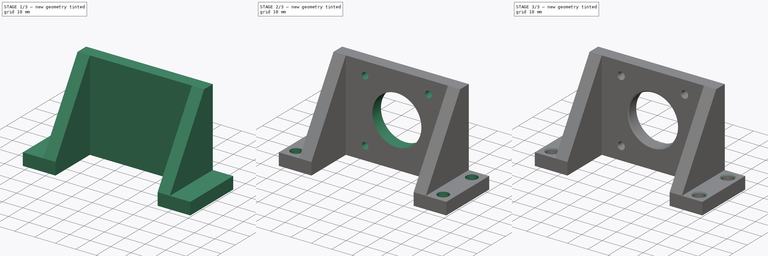
[diagram: build sequence overview — one tinted view per stage of 3, left to right]
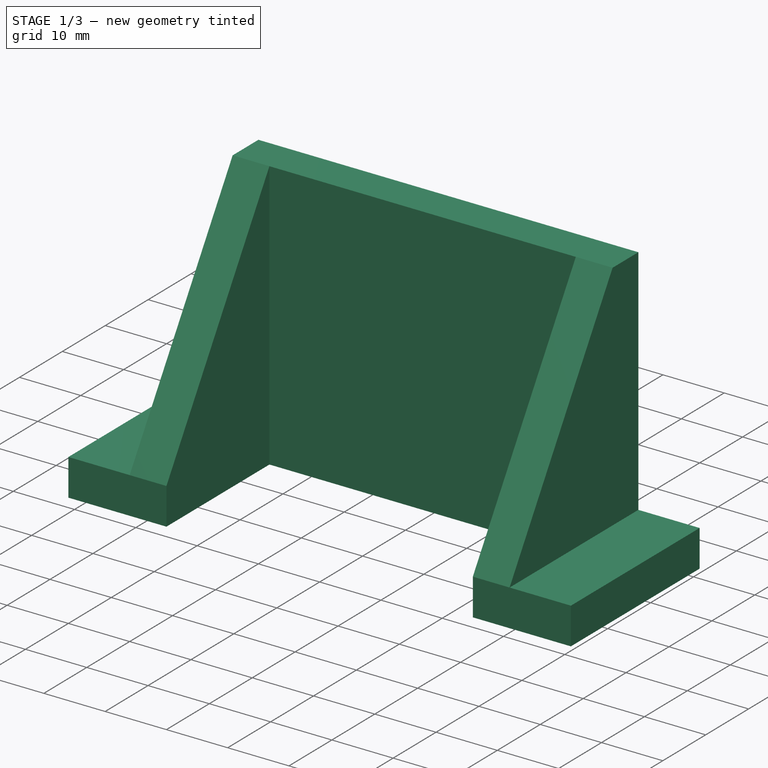
[diagram: stage 1 of 3 — iso view after this stage's code; geometry added in this stage tinted green]
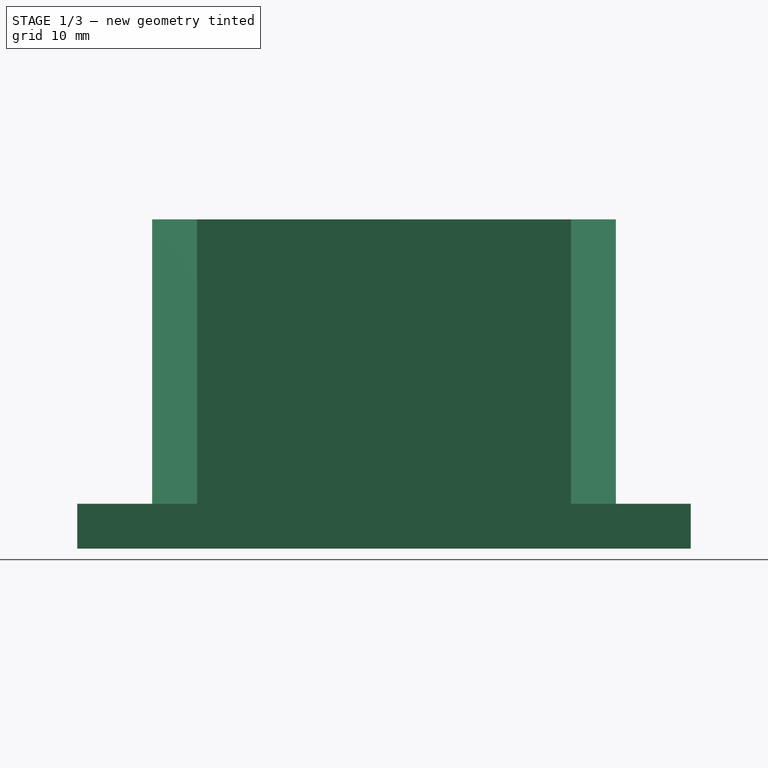
[diagram: stage 1 of 3 — front view after this stage's code; geometry added in this stage tinted green]
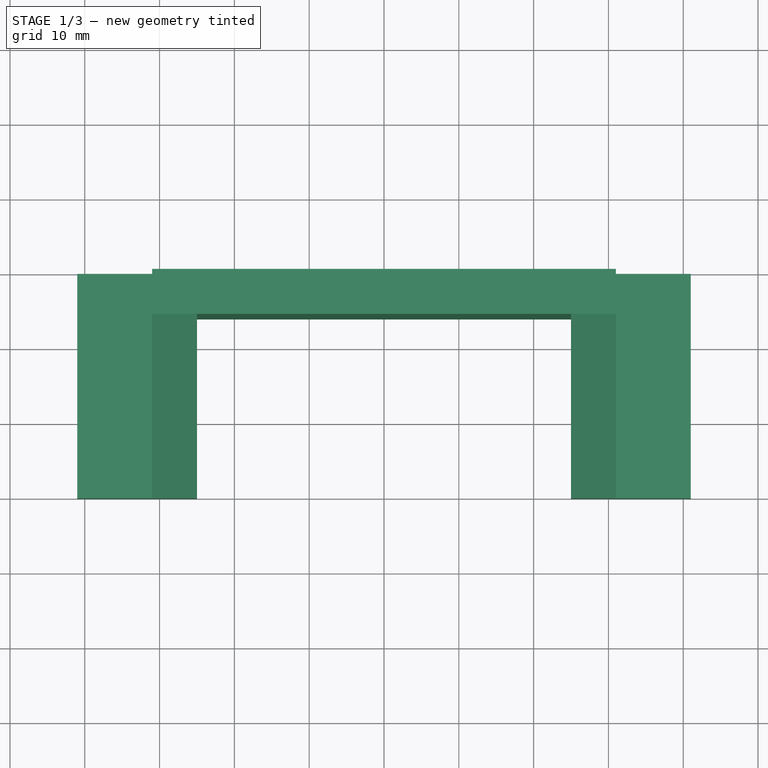
[diagram: stage 1 of 3 — top view after this stage's code; geometry added in this stage tinted green]
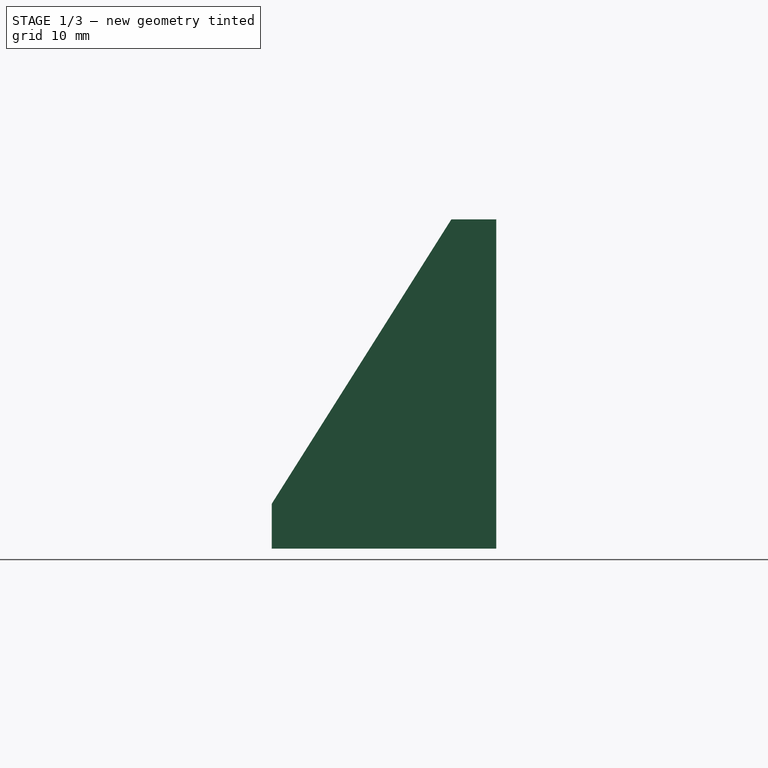
[diagram: stage 1 of 3 — right view after this stage's code; geometry added in this stage tinted green]
FCSTD DOCUMENT  (FreeCAD 0.15R4671 (Git))
Label: x-motor-mount
License: All rights reserved
LicenseURL: http://en.wikipedia.org/wiki/All_rights_reserved
objects: Drawing::FeatureView×30, Sketcher::SketchObject×5, PartDesign::Pocket×4, Drawing::FeatureViewPart×4, PartDesign::Chamfer×3, PartDesign::Pad×1, Drawing::FeaturePage×1
note: 18 computed .brp shape members not serialized (recipe doc carries the construction recipe); baked Part::Feature solids carry a one-line shape summary decoded from their .brp

FEATURE [Sketcher::SketchObject] Sketch  label="main-sketch"
  Placement = pos=(0,0,0) rot=(0.57735,0.57735,0.57735;2.0944rad)
  sketch-geometry (5):
    g0: LineSegment StartX=0 StartY=44 StartZ=0 EndX=0 EndY=0 EndZ=0
    g1: LineSegment StartX=0 StartY=0 StartZ=0 EndX=-30 EndY=0 EndZ=0
    g2: LineSegment StartX=0 StartY=44 StartZ=0 EndX=-6 EndY=44 EndZ=0
    g3: LineSegment StartX=-6 StartY=44 StartZ=0 EndX=-30 EndY=6 EndZ=0
    g4: LineSegment StartX=-30 StartY=6 StartZ=0 EndX=-30 EndY=0 EndZ=0
  constraints (15):
    c: PointOnObject(g0,g-2)
    c: Vertical(g0)
    c: Coincident(g0,g1)
    c: Horizontal(g1)
    c: Coincident(g0,g2)
    c: Horizontal(g2)
    c: Coincident(g2,g3)
    c: Coincident(g3,g4)
    c: Coincident(g1,g4)
    c: Coincident(g0,g-1)
    c: Vertical(g4)
    c: DistanceY(g3,g1) = -6
    c: DistanceX(g2,g0) = 6
    c: DistanceX(g-1,g1) = -30
    c: DistanceY(g-1,g0) = 44
FEATURE [PartDesign::Pad] Pad  label="main"
  Length = 82
  Length2 = 100
  Midplane = true
  Placement = pos=(0,0,0) rot=(0.57735,0.57735,0.57735;2.0944rad)
  Sketch = -> Sketch
  Type = 0
FEATURE [Sketcher::SketchObject] Sketch001  label="bottom-pocket-sketch"
  ExternalGeometry = -> [Pad]
  Placement = pos=(0,0,0) rot=(0.707107,0.707107,0;3.14159rad)
  Support = -> Pad [Face2]
  sketch-geometry (4):
    g0: LineSegment StartX=-31 StartY=25 StartZ=0 EndX=-6 EndY=25 EndZ=0
    g1: LineSegment StartX=-6 StartY=25 StartZ=0 EndX=-6 EndY=-25 EndZ=0
    g2: LineSegment StartX=-6 StartY=-25 StartZ=0 EndX=-31 EndY=-25 EndZ=0
    g3: LineSegment StartX=-31 StartY=-25 StartZ=0 EndX=-31 EndY=25 EndZ=0
  constraints (12):
    c: Coincident(g0,g1)
    c: Coincident(g1,g2)
    c: Coincident(g2,g3)
    c: Coincident(g3,g0)
    c: Horizontal(g0)
    c: Horizontal(g2)
    c: Vertical(g1)
    c: Vertical(g3)
    c: Symmetric(g0,g2,g-1)
    c: DistanceY(g0,g-3) = 16
    c: DistanceX(g-1,g0) = -6
    c: DistanceX(g0,g0) = -25
FEATURE [PartDesign::Pocket] Pocket  label="bottom-pocket"
  Length = 5
  Placement = pos=(0,0,0) rot=(0.57735,0.57735,0.57735;2.0944rad)
  Sketch = -> Sketch001
  Type = 1
FEATURE [Sketcher::SketchObject] Sketch002  label="front-pocket-sketch"
  ExternalGeometry = -> [Pocket]
  Placement = pos=(0,0,0) rot=(0.57735,0.57735,0.57735;4.18879rad)
  Support = -> Pocket [Face1]
  sketch-geometry (8):
    g0: LineSegment StartX=6 StartY=41 StartZ=0 EndX=51 EndY=41 EndZ=0
    g1: LineSegment StartX=51 StartY=41 StartZ=0 EndX=51 EndY=31 EndZ=0
    g2: LineSegment StartX=51 StartY=31 StartZ=0 EndX=6 EndY=31 EndZ=0
    g3: LineSegment StartX=6 StartY=31 StartZ=0 EndX=6 EndY=41 EndZ=0
    g4: LineSegment StartX=6 StartY=-31 StartZ=0 EndX=51 EndY=-31 EndZ=0
    g5: LineSegment StartX=51 StartY=-31 StartZ=0 EndX=51 EndY=-41 EndZ=0
    g6: LineSegment StartX=51 StartY=-41 StartZ=0 EndX=6 EndY=-41 EndZ=0
    g7: LineSegment StartX=6 StartY=-41 StartZ=0 EndX=6 EndY=-31 EndZ=0
  constraints (24):
    c: Coincident(g0,g1)
    c: Coincident(g1,g2)
    c: Coincident(g2,g3)
    c: Coincident(g3,g0)
    c: Horizontal(g0)
    c: Horizontal(g2)
    c: Vertical(g1)
    c: Vertical(g3)
    c: PointOnObject(g0,g-3)
    c: DistanceX(g-3,g0) = 6
    c: DistanceY(g-3,g2) = -10
    c: DistanceX(g2,g1) = 45
    c: Coincident(g4,g5)
    c: Coincident(g5,g6)
    c: Coincident(g6,g7)
    c: Coincident(g7,g4)
    c: Horizontal(g4)
    c: Horizontal(g6)
    c: Vertical(g5)
    c: Vertical(g7)
    c: PointOnObject(g6,g-4)
    c: DistanceY(g4,g-4) = -10
    c: DistanceX(g4,g4) = 45
    c: PointOnObject(g4,g3)
FEATURE [PartDesign::Pocket] Pocket001  label="front-pocket"
  Length = 5
  Placement = pos=(0,0,0) rot=(0.57735,0.57735,0.57735;2.0944rad)
  Sketch = -> Sketch002
  Type = 1
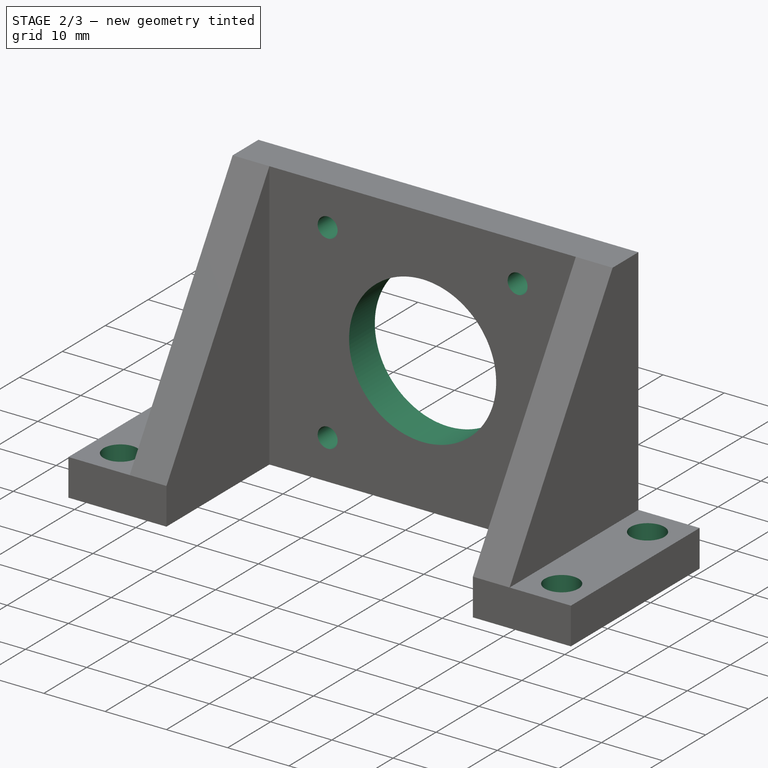
[diagram: stage 2 of 3 — iso view after this stage's code; geometry added in this stage tinted green]
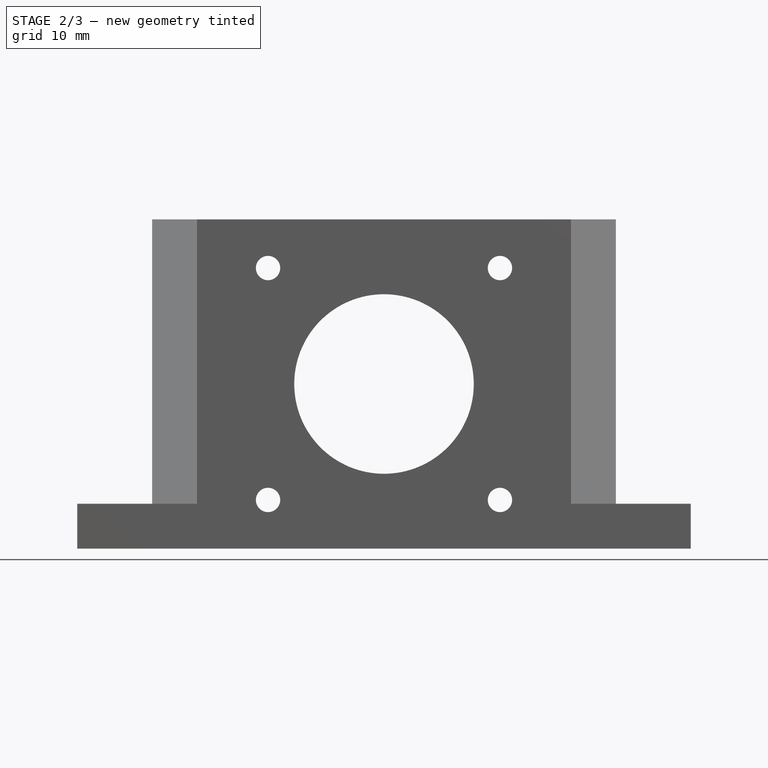
[diagram: stage 2 of 3 — front view after this stage's code; geometry added in this stage tinted green]
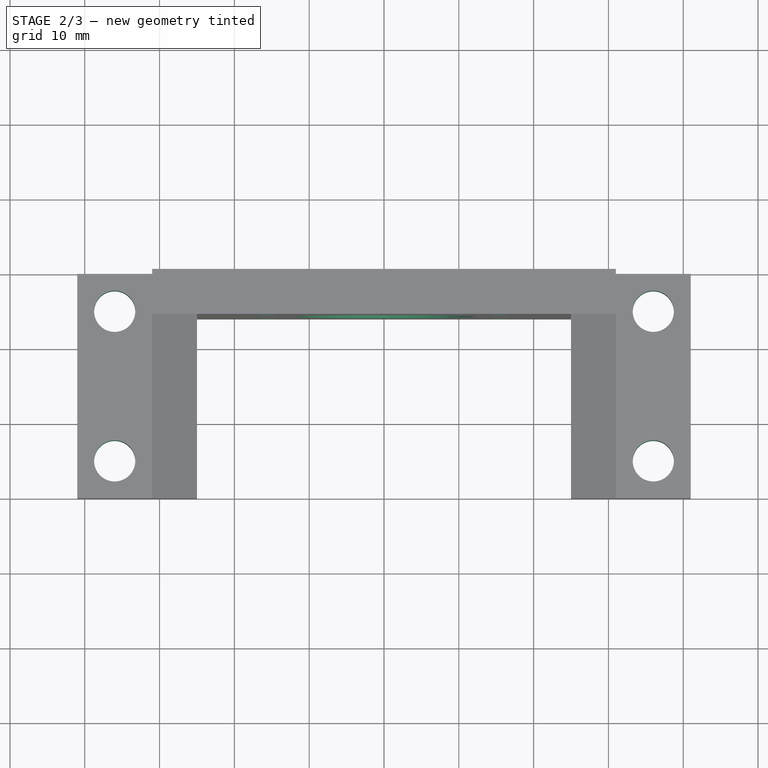
[diagram: stage 2 of 3 — top view after this stage's code; geometry added in this stage tinted green]
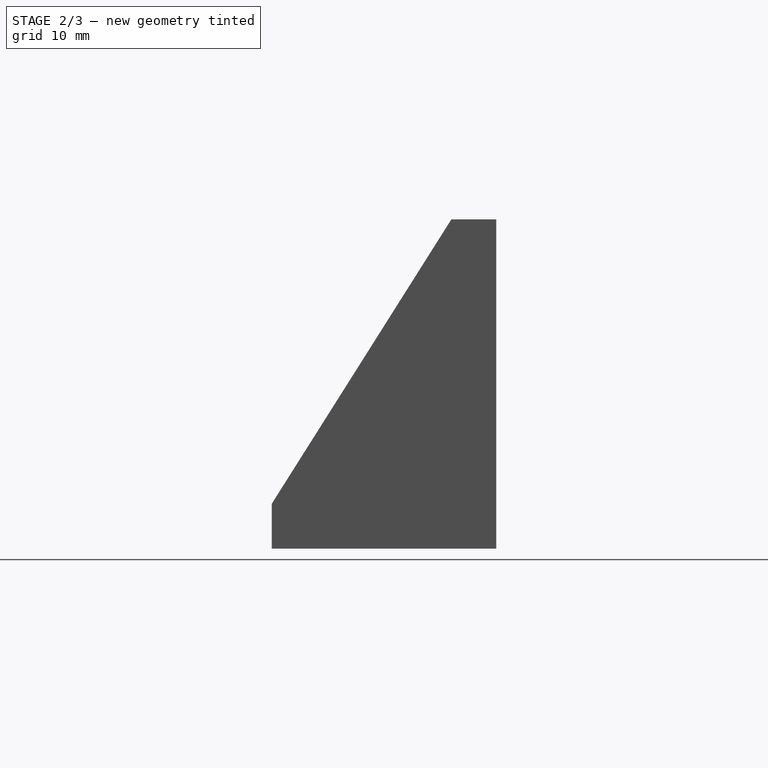
[diagram: stage 2 of 3 — right view after this stage's code; geometry added in this stage tinted green]
FEATURE [Sketcher::SketchObject] Sketch003  label="holes-sketch"
  Placement = pos=(0,0,0) rot=(0.57735,0.57735,0.57735;4.18879rad)
  Support = -> Pocket001 [Face1]
  sketch-geometry (9):
    g0: LineSegment [constr] StartX=6.5 StartY=15.5 StartZ=0 EndX=37.5 EndY=15.5 EndZ=0
    g1: LineSegment [constr] StartX=37.5 StartY=15.5 StartZ=0 EndX=37.5 EndY=-15.5 EndZ=0
    g2: LineSegment [constr] StartX=37.5 StartY=-15.5 StartZ=0 EndX=6.5 EndY=-15.5 EndZ=0
    g3: LineSegment [constr] StartX=6.5 StartY=-15.5 StartZ=0 EndX=6.5 EndY=15.5 EndZ=0
    g4: Circle CenterX=22 CenterY=0 CenterZ=0 NormalX=0 NormalY=0 NormalZ=1 Radius=12
    g5: Circle CenterX=6.5 CenterY=15.5 CenterZ=0 NormalX=0 NormalY=0 NormalZ=1 Radius=1.625
    g6: Circle CenterX=37.5 CenterY=15.5 CenterZ=0 NormalX=0 NormalY=0 NormalZ=1 Radius=1.625
    g7: Circle CenterX=6.5 CenterY=-15.5 CenterZ=0 NormalX=0 NormalY=0 NormalZ=1 Radius=1.625
    g8: Circle CenterX=37.5 CenterY=-15.5 CenterZ=0 NormalX=0 NormalY=0 NormalZ=1 Radius=1.625
  constraints (22):
    c: Coincident(g0,g1)
    c: Coincident(g1,g2)
    c: Coincident(g2,g3)
    c: Coincident(g3,g0)
    c: Horizontal(g0)
    c: Horizontal(g2)
    c: Vertical(g1)
    c: Vertical(g3)
    c: Symmetric(g0,g2,g-1)
    c: Distance(g2,g1) = 31
    c: Symmetric(g2,g0,g4)
    c: Coincident(g5,g0)
    c: Coincident(g6,g0)
    c: Coincident(g7,g2)
    c: Coincident(g8,g1)
    c: Radius(g8) = 1.625
    c: Equal(g8,g6)
    c: Equal(g8,g5)
    c: Equal(g8,g7)
    c: Radius(g4) = 12
    c: DistanceX(g-1,g4) = 22
    c: Equal(g1,g0)
FEATURE [PartDesign::Pocket] Pocket002  label="holes"
  Length = 5
  Placement = pos=(0,0,0) rot=(0.57735,0.57735,0.57735;2.0944rad)
  Sketch = -> Sketch003
  Type = 1
FEATURE [Sketcher::SketchObject] Sketch004  label="mounting-holes-sketch"
  ExternalGeometry = -> [Pocket002]
  Placement = pos=(0,0,6) rot=(0,0,-1;1.5708rad)
  Support = -> Pocket002 [Face3]
  sketch-geometry (9):
    g0: LineSegment [constr] StartX=5 StartY=36 StartZ=0 EndX=25 EndY=36 EndZ=0
    g1: LineSegment [constr] StartX=25 StartY=36 StartZ=0 EndX=25 EndY=-36 EndZ=0
    g2: LineSegment [constr] StartX=25 StartY=-36 StartZ=0 EndX=5 EndY=-36 EndZ=0
    g3: LineSegment [constr] StartX=5 StartY=-36 StartZ=0 EndX=5 EndY=36 EndZ=0
    g4: LineSegment [constr] StartX=0 StartY=36 StartZ=0 EndX=30 EndY=36 EndZ=0
    g5: Circle CenterX=5 CenterY=36 CenterZ=0 NormalX=0 NormalY=0 NormalZ=1 Radius=2.75
    g6: Circle CenterX=25 CenterY=36 CenterZ=0 NormalX=0 NormalY=0 NormalZ=1 Radius=2.75
    g7: Circle CenterX=5 CenterY=-36 CenterZ=0 NormalX=0 NormalY=0 NormalZ=1 Radius=2.75
    g8: Circle CenterX=25 CenterY=-36 CenterZ=0 NormalX=0 NormalY=0 NormalZ=1 Radius=2.75
  constraints (24):
    c: Coincident(g0,g1)
    c: Coincident(g1,g2)
    c: Coincident(g2,g3)
    c: Coincident(g3,g0)
    c: Horizontal(g0)
    c: Horizontal(g2)
    c: Vertical(g1)
    c: Vertical(g3)
    c: DistanceX(g0,g-4) = -5
    c: DistanceX(g0,g-3) = 5
    c: PointOnObject(g4,g-4)
    c: PointOnObject(g4,g-3)
    c: Horizontal(g4)
    c: Symmetric(g-4,g-4,g4)
    c: PointOnObject(g0,g4)
    c: Symmetric(g0,g2,g-1)
    c: Coincident(g5,g0)
    c: Coincident(g6,g0)
    c: Coincident(g7,g2)
    c: Coincident(g8,g1)
    c: Radius(g5) = 2.75
    c: Equal(g5,g6)
    c: Equal(g5,g8)
    c: Equal(g5,g7)
FEATURE [PartDesign::Pocket] Pocket003  label="mounting-holes"
  Length = 5
  Placement = pos=(0,0,0) rot=(0.57735,0.57735,0.57735;2.0944rad)
  Sketch = -> Sketch004
  Type = 1
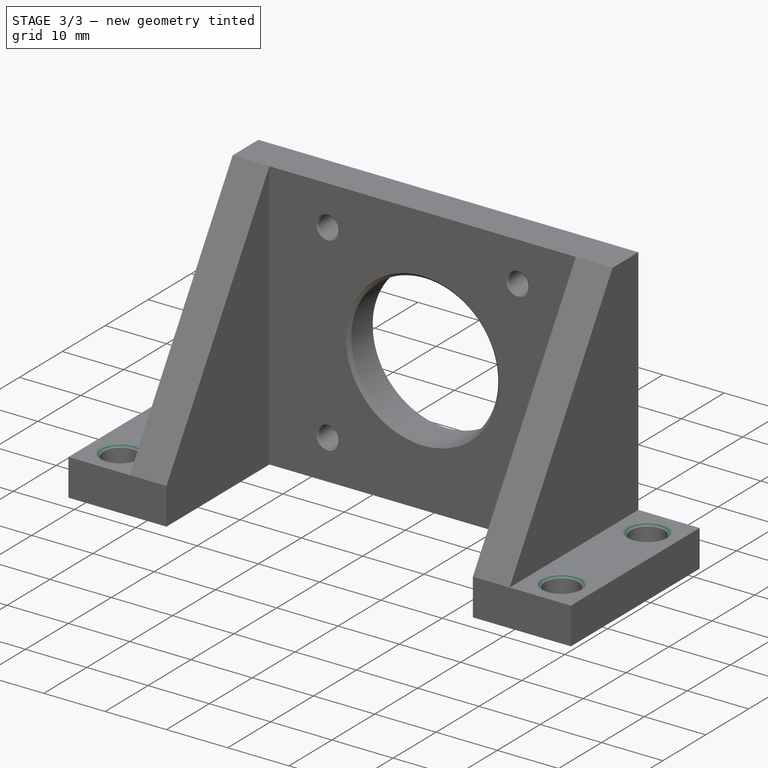
[diagram: stage 3 of 3 — iso view after this stage's code; geometry added in this stage tinted green]
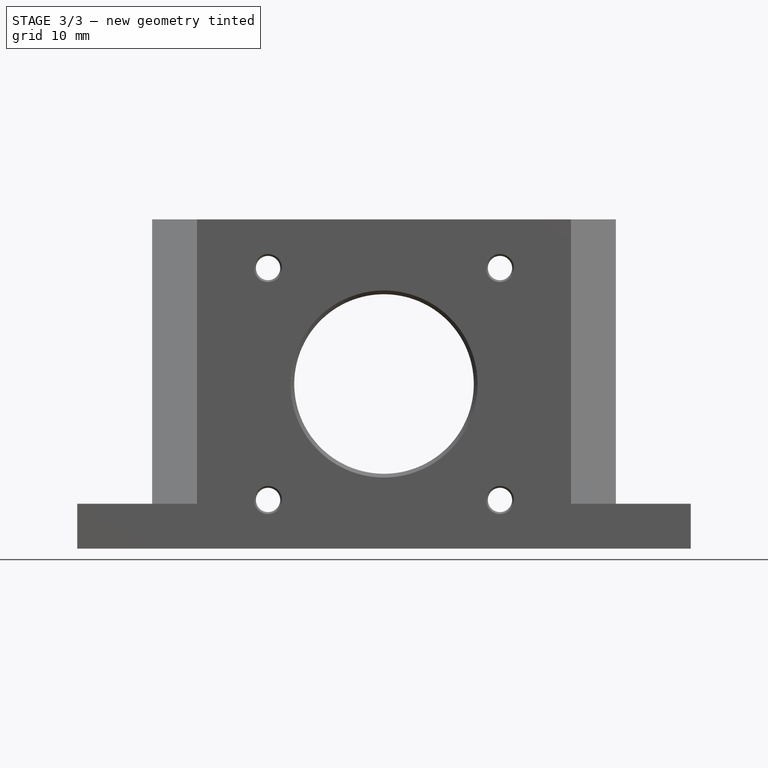
[diagram: stage 3 of 3 — front view after this stage's code; geometry added in this stage tinted green]
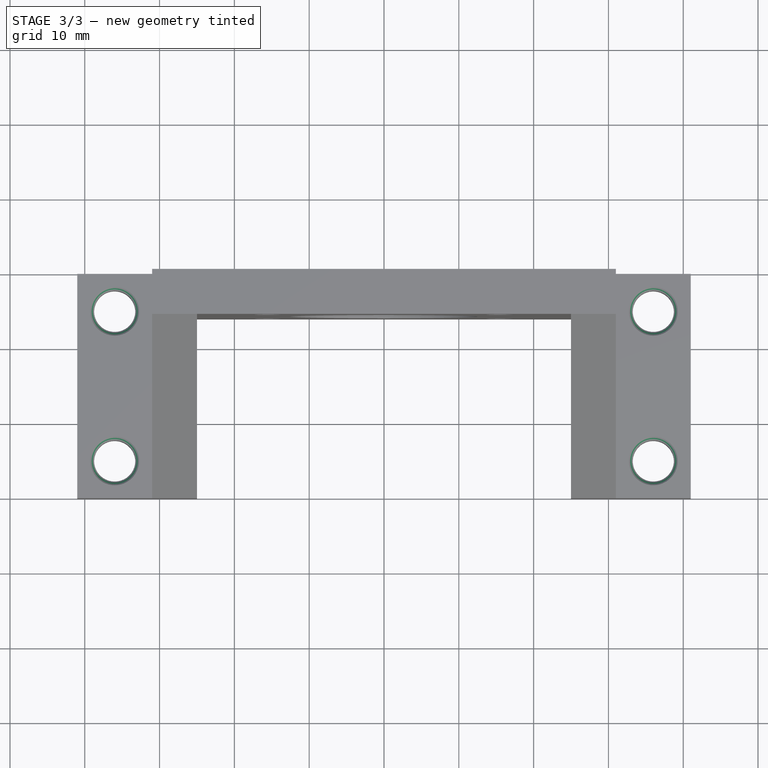
[diagram: stage 3 of 3 — top view after this stage's code; geometry added in this stage tinted green]
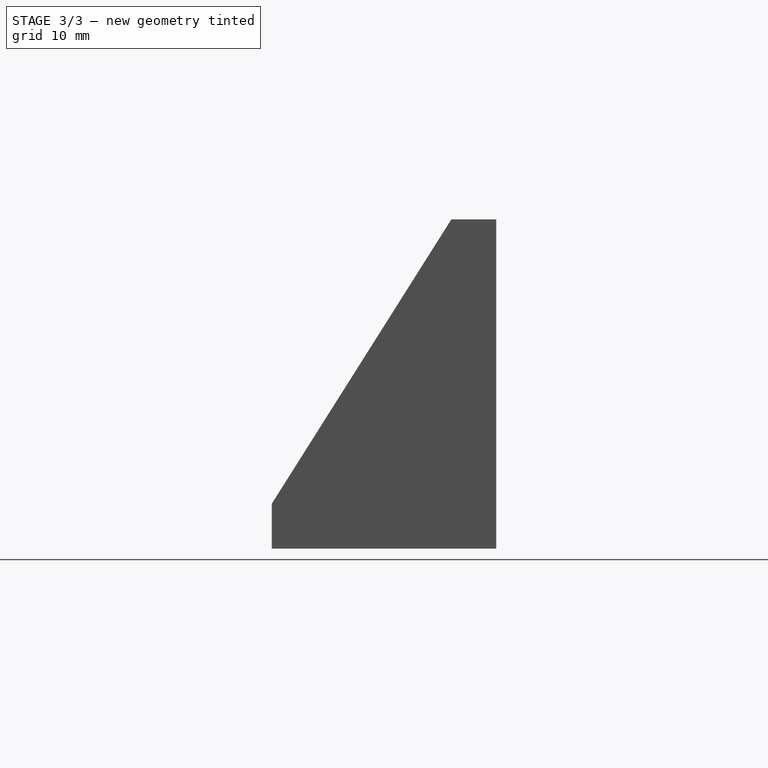
[diagram: stage 3 of 3 — right view after this stage's code; geometry added in this stage tinted green]
FEATURE [PartDesign::Chamfer] Chamfer  label="mounting-holes-chamfer"
  Base = -> Pocket003 [Edge41,Edge42,Edge20,Edge19]
  Placement = pos=(0,0,0) rot=(0.57735,0.57735,0.57735;2.0944rad)
  Size = 0.5
FEATURE [PartDesign::Chamfer] Chamfer001  label="motor-hole-chamfer"
  Base = -> Chamfer [Edge58,Edge19]
  Placement = pos=(0,0,0) rot=(0.57735,0.57735,0.57735;2.0944rad)
  Size = 0.5
FEATURE [PartDesign::Chamfer] Chamfer002  label="x-motor-mount"
  Base = -> Chamfer001 [Edge13,Edge12,Edge10,Edge11,Edge53,Edge51,Edge49,Edge47]
  Placement = pos=(0,0,0) rot=(0.57735,0.57735,0.57735;2.0944rad)
  Size = 0.25
FEATURE [Drawing::FeatureViewPart] Ortho  label="Ortho_0_0"
  Direction = (0,1,0)
  HiddenWidth = 0.15
  LineWidth = 0.35
  Rotation = -90
  Scale = 1.75
  ShowHiddenLines = false
  ShowSmoothLines = false
  Source = -> Chamfer002
  Tolerance = 0.05
  ViewResult = <g id="Ortho_0_0"\n   transform="rotate(-90,106.333,183.833) translate(106.333,183.833) scale(1.75,1.75)"\n  >\n<g   stroke="rgb(0, 0, 0)"\n   stroke-width="0.2"\n   stroke-linecap="butt"\n   stroke-linejoin="miter"\n   fill="none"\n   transform="scale(1,-1)"\n  >\n<circle cx ="37.5" cy ="15.5" r ="1.875" /><circle cx ="22" cy ="-1.42109e-14" r ="12.5" /><path id= "3" d=" M 6 -31 L 44 -31 " />\n<path id= "4" d=" M 6 -41 L 6 -31 " />\n<path id= "5" d=" M 44 -31 L 44 31 " />\n<path id= "6" d=" M 6 -41 L -4.26326e-14 -41 " />\n<path id= "7" d=" M 44 31 L 6 31 " />\n<path id= "8" d=" M -2.27596e-14 -41 L 2.27596e-14 41 " />\n<path id= "9" d=" M 6 31 L 6 41 " />\n<path id= "10" d=" M 6 41 L 0 41 " />\n<circle cx ="6.5" cy ="15.5" r ="1.875" /><circle cx ="37.5" cy ="-15.5" r ="1.875" /><circle cx ="6.5" cy ="-15.5" r ="1.875" /><circle cx ="37.5" cy ="15.5" r ="1.625" /><circle cx ="22" cy ="-1.42109e-14" r ="12" /><path d="M6,-32.75 L6,-32.8315  L6,-33.0719  L6,-33.459  L6,-33.9737  L6,-34.5899  L6,-35.2768  L6,-36  L6,-36.7232  L6,-37.4101  L6,-38.0263  L6,-38.541  L6,-38.9281  L6,-39.1685  L6,-39.25 " /><path d="M6,39.25 L6,39.1685  L6,38.9281  L6,38.541  L6,38.0263  L6,37.4101  L6,36.7232  L6,36  L6,35.2768  L6,34.5899  L6,33.9737  L6,33.459  L6,33.0719  L6,32.8315  L6,32.75 " /><circle cx ="6.5" cy ="15.5" r ="1.625" /><circle cx ="37.5" cy ="-15.5" r ="1.625" /><circle cx ="6.5" cy ="-15.5" r ="1.625" /></g>\n</g>
  Visible = true
  X = 106.333
  Y = 183.833
FEATURE [Drawing::FeatureViewPart] Ortho001  label="Ortho_1_0"
  Direction = (-1,0,0)
  HiddenWidth = 0.15
  LineWidth = 0.35
  Rotation = 90
  Scale = 1.75
  ShowHiddenLines = false
  ShowSmoothLines = false
  Source = -> Chamfer002
  Tolerance = 0.05
  ViewResult = <g id="Ortho_1_0"\n   transform="rotate(90,216.417,183.833) translate(216.417,183.833) scale(1.75,1.75)"\n  >\n<g   stroke="rgb(0, 0, 0)"\n   stroke-width="0.2"\n   stroke-linecap="butt"\n   stroke-linejoin="miter"\n   fill="none"\n   transform="scale(1,-1)"\n  >\n<path d="M-9.5,-5.27356e-15 L-9.8134,-5.44753e-15  L-10.7379,-5.96073e-15  L-12.2271,-6.78741e-15  L-14.2064,-7.88612e-15  L-16.5765,-9.20178e-15  L-19.2185,-1.06684e-14  L-22,-1.22125e-14  L-24.7815,-1.37565e-14  L-27.4235,-1.52231e-14  L-29.7936,-1.65388e-14  L-31.7729,-1.76375e-14  L-33.2621,-1.84642e-14  L-34.1866,-1.89774e-14  L-34.5,-1.91513e-14 " /><path id= "2" d=" M -6 -9.21485e-15 L -44 -2.18714e-14 " />\n<path id= "3" d=" M -6 -3.33067e-15 L 4.26326e-14 1.89327e-29 " />\n<path d="M-35.625,-1.97758e-14 L-35.672,-1.98019e-14  L-35.8107,-1.98789e-14  L-36.0341,-2.00029e-14  L-36.331,-2.01677e-14  L-36.6865,-2.03651e-14  L-37.0828,-2.05851e-14  L-37.5,-2.08167e-14  L-37.9172,-2.10483e-14  L-38.3135,-2.12683e-14  L-38.669,-2.14656e-14  L-38.9659,-2.16304e-14  L-39.1893,-2.17544e-14  L-39.328,-2.18314e-14  L-39.375,-2.18575e-14 " /><path id= "5" d=" M -44 6 L -44 -2.31482e-14 " />\n<path id= "6" d=" M -6 30 L -44 6 " />\n<path id= "7" d=" M -6 -9.21485e-15 L -6 21.75 " />\n<path id= "8" d=" M -6 -1.14353e-14 L -6 30 " />\n<path d="M-6,1.75 L-6,1.83148  L-6,2.07185  L-6,2.45905  L-6,2.97366  L-6,3.58988  L-6,4.27681  L-6,5  L-6,5.72319  L-6,6.41012  L-6,7.02634  L-6,7.54095  L-6,7.92815  L-6,8.16852  L-6,8.25 " /><path id= "10" d=" M 2.27596e-14 5.05364e-30 L 2.27596e-14 30 " />\n<path id= "11" d=" M -6 30 L 2.66454e-14 30 " />\n<path id= "12" d=" M -1.28786e-14 30 L -6 30 " />\n</g>\n</g>
  Visible = true
  X = 216.417
  Y = 183.833
FEATURE [Drawing::FeatureViewPart] Ortho002  label="Ortho_0_1"
  Direction = (0,0,1)
  HiddenWidth = 0.15
  LineWidth = 0.35
  Rotation = 180
  Scale = 1.75
  ShowHiddenLines = false
  ShowSmoothLines = false
  Source = -> Chamfer002
  Tolerance = 0.05
  ViewResult = <blob: 3945 chars omitted>
  Visible = true
  X = 106.333
  Y = 76.9167
FEATURE [Drawing::FeatureViewPart] Ortho003  label="Ortho_1_1"
  Direction = (-0.57735,0.57735,0.57735)
  HiddenWidth = 0.15
  LineWidth = 0.35
  Rotation = -120
  Scale = 0.6
  ShowHiddenLines = false
  ShowSmoothLines = false
  Source = -> Chamfer002
  Tolerance = 0.05
  ViewResult = <blob: 5488 chars omitted>
  Visible = true
  X = 236.303
  Y = 65.1187
FEATURE [Drawing::FeatureView] centerLines001
  Rotation = 0
  ViewResult = <g transform="scale(1.750000,1.750000)" stroke="rgb(0,0,255)"  stroke-width="0.182857" > <path d="M 24.761714,18.952400 L 24.761714,17.238114 M 24.761714,16.095257 L 24.761714,13.206735 "/>\n<path d="M 24.761714,18.952400 L 23.047429,18.952400 M 21.904571,18.952400 L 18.532031,18.952400 "/>\n<path d="M 24.761714,18.952400 L 24.761714,20.666686 M 24.761714,21.809543 L 24.761714,25.238114 M 24.761714,26.380971 L 24.761714,28.095257 M 24.761714,29.238114 L 24.761714,32.666686 M 24.761714,33.809543 L 24.761714,35.523829 M 24.761714,36.666686 L 24.761714,40.095257 M 24.761714,41.238114 L 24.761714,42.952400 M 24.761714,44.095257 L 24.761714,44.306466 "/>\n<path d="M 24.761714,18.952400 L 26.476000,18.952400 M 27.618857,18.952400 L 29.182624,18.952400 "/> </g> 
  Visible = true
  X = 0
  Y = 0
FEATURE [Drawing::FeatureView] centerLines002
  Rotation = 0
  ViewResult = <g transform="scale(1.750000,1.750000)" stroke="rgb(0,0,255)"  stroke-width="0.182857" > <path d="M 24.761714,38.952400 L 24.761714,40.666686 "/>\n<path d="M 24.761714,38.952400 L 26.476000,38.952400 M 27.618857,38.952400 L 29.395636,38.952400 "/>\n<path d="M 24.761714,38.952400 L 24.761714,39.620205 "/>\n<path d="M 24.761714,38.952400 L 23.047429,38.952400 M 21.904571,38.952400 L 20.662150,38.952400 "/> </g> 
  Visible = true
  X = 0
  Y = 0
FEATURE [Drawing::FeatureView] dim001
  Rotation = 0
  ViewResult = <g> \n  <line x1="41.333000" y1="33.166700" x2="27.216675" y2="33.166700" style="stroke:rgb(0,0,255);stroke-width:0.50" />\n<line x1="41.333000" y1="68.166700" x2="27.216675" y2="68.166700" style="stroke:rgb(0,0,255);stroke-width:0.50" />\n<line x1="28.216675" y1="33.166700" x2="28.216675" y2="68.166700" style="stroke:rgb(0,0,255);stroke-width:0.50" /> \n  <polygon points="28.216675,68.166700 29.216675,65.166700 28.216675,64.166700 27.216675,65.166700" style="fill:rgb(0,0,255);stroke:rgb(0,0,255);stroke-width:0" /><polygon points="28.216675,33.166700 27.216675,36.166700 28.216675,37.166700 29.216675,36.166700" style="fill:rgb(0,0,255);stroke:rgb(0,0,255);stroke-width:0" /> \n  <text x="26.216675" y="50.666700" font-family="inherit" font-size="3.6" fill="rgb(0,0,255)" text-anchor="middle" transform="rotate(-90.000000 26.216675,50.666700)" >20</text> </g>
  Visible = true
  X = 0
  Y = 0
FEATURE [Drawing::FeatureView] dim002
  Rotation = 0
  ViewResult = <g> \n  <line x1="41.333000" y1="68.166700" x2="27.245971" y2="68.166700" style="stroke:rgb(0,0,255);stroke-width:0.50" />\n<line x1="32.583000" y1="76.916700" x2="27.245971" y2="76.916700" style="stroke:rgb(0,0,255);stroke-width:0.50" />\n<line x1="28.245971" y1="68.166700" x2="28.245971" y2="76.916700" style="stroke:rgb(0,0,255);stroke-width:0.50" /> \n  <polygon points="28.245971,76.916700 27.245971,79.916700 28.245971,80.916700 29.245971,79.916700" style="fill:rgb(0,0,255);stroke:rgb(0,0,255);stroke-width:0" /><polygon points="28.245971,68.166700 29.245971,65.166700 28.245971,64.166700 27.245971,65.166700" style="fill:rgb(0,0,255);stroke:rgb(0,0,255);stroke-width:0" /> \n  <text x="26.245971" y="72.541700" font-family="inherit" font-size="3.6" fill="rgb(0,0,255)" text-anchor="middle" transform="rotate(-90.000000 26.245971,72.541700)" >5</text> </g>
  Visible = true
  X = 0
  Y = 0
FEATURE [Drawing::FeatureView] dim003
  Rotation = 0
  ViewResult = <g> \n  <line x1="32.583000" y1="24.416700" x2="17.117376" y2="24.416700" style="stroke:rgb(0,0,255);stroke-width:0.50" />\n<line x1="32.583000" y1="76.916700" x2="17.117376" y2="76.916700" style="stroke:rgb(0,0,255);stroke-width:0.50" />\n<line x1="18.117376" y1="24.416700" x2="18.117376" y2="76.916700" style="stroke:rgb(0,0,255);stroke-width:0.50" /> \n  <polygon points="18.117376,76.916700 19.117376,73.916700 18.117376,72.916700 17.117376,73.916700" style="fill:rgb(0,0,255);stroke:rgb(0,0,255);stroke-width:0" /><polygon points="18.117376,24.416700 17.117376,27.416700 18.117376,28.416700 19.117376,27.416700" style="fill:rgb(0,0,255);stroke:rgb(0,0,255);stroke-width:0" /> \n  <text x="16.117376" y="50.666700" font-family="inherit" font-size="3.6" fill="rgb(0,0,255)" text-anchor="middle" transform="rotate(-90.000000 16.117376,50.666700)" >30</text> </g>
  Visible = true
  X = 0
  Y = 0
FEATURE [Drawing::FeatureView] centerLines003
  Rotation = 0
  ViewResult = <g transform="scale(1.750000,1.750000)" stroke="rgb(0,0,255)"  stroke-width="0.182857" > <path d="M 96.761714,18.952400 L 96.761714,17.238114 M 96.761714,16.095257 L 96.761714,15.203392 "/>\n<path d="M 96.761714,18.952400 L 95.047429,18.952400 M 93.904571,18.952400 L 92.350336,18.952400 "/>\n<path d="M 96.761714,18.952400 L 96.761714,20.666686 M 96.761714,21.809543 L 96.761714,25.238114 M 96.761714,26.380971 L 96.761714,28.095257 M 96.761714,29.238114 L 96.761714,32.666686 M 96.761714,33.809543 L 96.761714,35.523829 M 96.761714,36.666686 L 96.761714,40.095257 M 96.761714,41.238114 L 96.761714,42.939311 "/>\n<path d="M 96.761714,18.952400 L 98.476000,18.952400 M 99.618857,18.952400 L 100.876563,18.952400 "/> </g> 
  Visible = true
  X = 0
  Y = 0
FEATURE [Drawing::FeatureView] centerLines004
  Rotation = 0
  ViewResult = <g transform="scale(1.750000,1.750000)" stroke="rgb(0,0,255)"  stroke-width="0.182857" > <path d="M 96.761714,38.952400 L 96.761714,38.933012 "/>\n<path d="M 96.761714,38.952400 L 95.047429,38.952400 M 93.904571,38.952400 L 92.144885,38.952400 "/>\n<path d="M 96.761714,38.952400 L 96.761714,38.727560 "/>\n<path d="M 96.761714,38.952400 L 98.476000,38.952400 M 99.618857,38.952400 L 102.109271,38.952400 "/> </g> 
  Visible = true
  X = 0
  Y = 0
FEATURE [Drawing::FeatureView] dim004
  Rotation = 0
  ViewResult = <g> \n  <line x1="169.332999" y1="77.143794" x2="169.332999" y2="86.210905" style="stroke:rgb(0,0,255);stroke-width:0.50" />\n<line x1="43.332999" y1="79.536316" x2="43.332999" y2="86.210905" style="stroke:rgb(0,0,255);stroke-width:0.50" />\n<line x1="169.332999" y1="85.210905" x2="43.332999" y2="85.210905" style="stroke:rgb(0,0,255);stroke-width:0.50" /> \n  <polygon points="43.332999,85.210905 46.332999,86.210905 47.332999,85.210905 46.332999,84.210905" style="fill:rgb(0,0,255);stroke:rgb(0,0,255);stroke-width:0" /><polygon points="169.332999,85.210905 166.332999,84.210905 165.332999,85.210905 166.332999,86.210905" style="fill:rgb(0,0,255);stroke:rgb(0,0,255);stroke-width:0" /> \n  <text x="106.332999" y="83.210905" font-family="inherit" font-size="3.6" fill="rgb(0,0,255)" text-anchor="middle" transform="rotate(0.000000 106.332999,83.210905)" >72</text> </g>
  Visible = true
  X = 0
  Y = 0
FEATURE [Drawing::FeatureView] dim005
  Rotation = 0
  ViewResult = <g> \n  <line x1="34.583000" y1="78.916700" x2="34.583000" y2="86.249652" style="stroke:rgb(0,0,255);stroke-width:0.50" />\n<line x1="43.332999" y1="79.536316" x2="43.332999" y2="86.249652" style="stroke:rgb(0,0,255);stroke-width:0.50" />\n<line x1="34.583000" y1="85.249652" x2="43.332999" y2="85.249652" style="stroke:rgb(0,0,255);stroke-width:0.50" /> \n  <polygon points="43.332999,85.249652 46.332999,86.249652 47.332999,85.249652 46.332999,84.249652" style="fill:rgb(0,0,255);stroke:rgb(0,0,255);stroke-width:0" /><polygon points="34.583000,85.249652 31.583000,84.249652 30.583000,85.249652 31.583000,86.249652" style="fill:rgb(0,0,255);stroke:rgb(0,0,255);stroke-width:0" /> \n  <text x="38.958000" y="83.249652" font-family="inherit" font-size="3.6" fill="rgb(0,0,255)" text-anchor="middle" transform="rotate(0.000000 38.958000,83.249652)" >5</text> </g>
  Visible = true
  X = 0
  Y = 0
FEATURE [Drawing::FeatureView] dim007
  Rotation = 0
  ViewResult = <g> \n  <line x1="52.083000" y1="22.416700" x2="52.083000" y2="11.684560" style="stroke:rgb(0,0,255);stroke-width:0.50" />\n<line x1="160.583000" y1="22.416700" x2="160.583000" y2="11.684560" style="stroke:rgb(0,0,255);stroke-width:0.50" />\n<line x1="52.083000" y1="12.684560" x2="160.583000" y2="12.684560" style="stroke:rgb(0,0,255);stroke-width:0.50" /> \n  <polygon points="160.583000,12.684560 157.583000,11.684560 156.583000,12.684560 157.583000,13.684560" style="fill:rgb(0,0,255);stroke:rgb(0,0,255);stroke-width:0" /><polygon points="52.083000,12.684560 55.083000,13.684560 56.083000,12.684560 55.083000,11.684560" style="fill:rgb(0,0,255);stroke:rgb(0,0,255);stroke-width:0" /> \n  <text x="106.333000" y="10.684560" font-family="inherit" font-size="3.6" fill="rgb(0,0,255)" text-anchor="middle" transform="rotate(0.000000 106.333000,10.684560)" >62</text> </g>
  Visible = true
  X = 0
  Y = 0
FEATURE [Drawing::FeatureView] dim008
  Rotation = 0
  ViewResult = <g> \n  <line x1="52.083000" y1="22.416700" x2="52.083000" y2="11.649889" style="stroke:rgb(0,0,255);stroke-width:0.50" />\n<line x1="34.583000" y1="22.416700" x2="34.583000" y2="11.649889" style="stroke:rgb(0,0,255);stroke-width:0.50" />\n<line x1="52.083000" y1="12.649889" x2="34.583000" y2="12.649889" style="stroke:rgb(0,0,255);stroke-width:0.50" /> \n  <polygon points="34.583000,12.649889 37.583000,13.649889 38.583000,12.649889 37.583000,11.649889" style="fill:rgb(0,0,255);stroke:rgb(0,0,255);stroke-width:0" /><polygon points="52.083000,12.649889 49.083000,11.649889 48.083000,12.649889 49.083000,13.649889" style="fill:rgb(0,0,255);stroke:rgb(0,0,255);stroke-width:0" /> \n  <text x="43.333000" y="10.649889" font-family="inherit" font-size="3.6" fill="rgb(0,0,255)" text-anchor="middle" transform="rotate(0.000000 43.333000,10.649889)" >10</text> </g>
  Visible = true
  X = 0
  Y = 0
FEATURE [Drawing::FeatureView] dim009
  Rotation = 0
  ViewResult = <g> \n  <line x1="62.583000" y1="22.416700" x2="62.583000" y2="18.495872" style="stroke:rgb(0,0,255);stroke-width:0.50" />\n<line x1="52.083000" y1="22.416700" x2="52.083000" y2="18.495872" style="stroke:rgb(0,0,255);stroke-width:0.50" />\n<line x1="62.583000" y1="19.495872" x2="52.083000" y2="19.495872" style="stroke:rgb(0,0,255);stroke-width:0.50" /> \n  <polygon points="52.083000,19.495872 55.083000,20.495872 56.083000,19.495872 55.083000,18.495872" style="fill:rgb(0,0,255);stroke:rgb(0,0,255);stroke-width:0" /><polygon points="62.583000,19.495872 59.583000,18.495872 58.583000,19.495872 59.583000,20.495872" style="fill:rgb(0,0,255);stroke:rgb(0,0,255);stroke-width:0" /> \n  <text x="57.333000" y="17.495872" font-family="inherit" font-size="3.6" fill="rgb(0,0,255)" text-anchor="middle" transform="rotate(0.000000 57.333000,17.495872)" >6</text> </g>
  Visible = true
  X = 0
  Y = 0
FEATURE [Drawing::FeatureView] dim010
  Rotation = 0
  ViewResult = <g> \n  <line x1="150.083000" y1="22.416700" x2="150.083000" y2="18.102016" style="stroke:rgb(0,0,255);stroke-width:0.50" />\n<line x1="160.583000" y1="22.416700" x2="160.583000" y2="18.102016" style="stroke:rgb(0,0,255);stroke-width:0.50" />\n<line x1="150.083000" y1="19.102016" x2="160.583000" y2="19.102016" style="stroke:rgb(0,0,255);stroke-width:0.50" /> \n  <polygon points="160.583000,19.102016 157.583000,18.102016 156.583000,19.102016 157.583000,20.102016" style="fill:rgb(0,0,255);stroke:rgb(0,0,255);stroke-width:0" /><polygon points="150.083000,19.102016 153.083000,20.102016 154.083000,19.102016 153.083000,18.102016" style="fill:rgb(0,0,255);stroke:rgb(0,0,255);stroke-width:0" /> \n  <text x="155.333000" y="17.102016" font-family="inherit" font-size="3.6" fill="rgb(0,0,255)" text-anchor="middle" transform="rotate(0.000000 155.333000,17.102016)" >6</text> </g>
  Visible = true
  X = 0
  Y = 0
FEATURE [Drawing::FeatureView] dim011
  Rotation = 0
  ViewResult = <g> \n  <line x1="54.083000" y1="66.416700" x2="71.971187" y2="66.416700" style="stroke:rgb(0,0,255);stroke-width:0.50" />\n<line x1="54.083000" y1="76.916700" x2="71.971187" y2="76.916700" style="stroke:rgb(0,0,255);stroke-width:0.50" />\n<line x1="70.971187" y1="66.416700" x2="70.971187" y2="76.916700" style="stroke:rgb(0,0,255);stroke-width:0.50" /> \n  <polygon points="70.971187,76.916700 71.971187,73.916700 70.971187,72.916700 69.971187,73.916700" style="fill:rgb(0,0,255);stroke:rgb(0,0,255);stroke-width:0" /><polygon points="70.971187,66.416700 69.971187,69.416700 70.971187,70.416700 71.971187,69.416700" style="fill:rgb(0,0,255);stroke:rgb(0,0,255);stroke-width:0" /> \n  <text x="68.971187" y="71.666700" font-family="inherit" font-size="3.6" fill="rgb(0,0,255)" text-anchor="middle" transform="rotate(-90.000000 68.971187,71.666700)" >6</text> </g>
  Visible = true
  X = 0
  Y = 0
FEATURE [Drawing::FeatureView] centerLines005
  Rotation = 0
  ViewResult = <g transform="scale(1.750000,1.750000)" stroke="rgb(0,0,255)"  stroke-width="0.182857" > <path d="M 60.761714,83.047429 L 60.761714,81.333143 M 60.761714,80.190286 L 60.761714,76.761714 M 60.761714,75.618857 L 60.761714,73.904571 M 60.761714,72.761714 L 60.761714,69.333143 "/>\n<path d="M 60.761714,83.047429 L 59.047429,83.047429 M 57.904571,83.047429 L 54.476000,83.047429 M 53.333143,83.047429 L 51.618857,83.047429 M 50.476000,83.047429 L 47.047429,83.047429 M 45.904571,83.047429 L 45.258554,83.047429 "/>\n<path d="M 60.761714,83.047429 L 60.761714,84.761714 M 60.761714,85.904571 L 60.761714,89.333143 M 60.761714,90.476000 L 60.761714,92.190286 M 60.761714,93.333143 L 60.761714,96.761714 M 60.761714,97.904571 L 60.761714,98.537612 "/>\n<path d="M 60.761714,83.047429 L 62.476000,83.047429 M 63.618857,83.047429 L 67.047429,83.047429 M 68.190286,83.047429 L 69.904571,83.047429 M 71.047429,83.047429 L 74.476000,83.047429 M 75.618857,83.047429 L 76.003817,83.047429 "/> </g> 
  Visible = true
  X = 0
  Y = 0
FEATURE [Drawing::FeatureView] dim012
  Rotation = 0
  ViewResult = <g> \n  <line x1="77.208000" y1="118.208000" x2="68.911916" y2="118.208000" style="stroke:rgb(0,0,255);stroke-width:0.50" />\n<line x1="77.208000" y1="172.458000" x2="68.911916" y2="172.458000" style="stroke:rgb(0,0,255);stroke-width:0.50" />\n<line x1="69.911916" y1="118.208000" x2="69.911916" y2="172.458000" style="stroke:rgb(0,0,255);stroke-width:0.50" /> \n  <polygon points="69.911916,172.458000 70.911916,169.458000 69.911916,168.458000 68.911916,169.458000" style="fill:rgb(0,0,255);stroke:rgb(0,0,255);stroke-width:0" /><polygon points="69.911916,118.208000 68.911916,121.208000 69.911916,122.208000 70.911916,121.208000" style="fill:rgb(0,0,255);stroke:rgb(0,0,255);stroke-width:0" /> \n  <text x="67.911916" y="145.333000" font-family="inherit" font-size="3.6" fill="rgb(0,0,255)" text-anchor="middle" transform="rotate(-90.000000 67.911916,145.333000)" >31</text> </g>
  Visible = true
  X = 0
  Y = 0
FEATURE [Drawing::FeatureView] dim013
  Rotation = 0
  ViewResult = <g> \n  <line x1="77.208000" y1="172.458000" x2="68.913162" y2="172.458000" style="stroke:rgb(0,0,255);stroke-width:0.50" />\n<line x1="176.083000" y1="183.833000" x2="68.913162" y2="183.833000" style="stroke:rgb(0,0,255);stroke-width:0.50" />\n<line x1="69.913162" y1="172.458000" x2="69.913162" y2="183.833000" style="stroke:rgb(0,0,255);stroke-width:0.50" /> \n  <polygon points="69.913162,183.833000 70.913162,180.833000 69.913162,179.833000 68.913162,180.833000" style="fill:rgb(0,0,255);stroke:rgb(0,0,255);stroke-width:0" /><polygon points="69.913162,172.458000 68.913162,175.458000 69.913162,176.458000 70.913162,175.458000" style="fill:rgb(0,0,255);stroke:rgb(0,0,255);stroke-width:0" /> \n  <text x="67.913162" y="178.145500" font-family="inherit" font-size="3.6" fill="rgb(0,0,255)" text-anchor="middle" transform="rotate(-90.000000 67.913162,178.145500)" >6.5</text> </g>
  Visible = true
  X = 0
  Y = 0
FEATURE [Drawing::FeatureView] dim014
  Rotation = 0
  ViewResult = <g> \n  <line x1="79.208000" y1="116.208000" x2="79.208000" y2="95.732081" style="stroke:rgb(0,0,255);stroke-width:0.50" />\n<line x1="133.458000" y1="116.208000" x2="133.458000" y2="95.732081" style="stroke:rgb(0,0,255);stroke-width:0.50" />\n<line x1="79.208000" y1="96.732081" x2="133.458000" y2="96.732081" style="stroke:rgb(0,0,255);stroke-width:0.50" /> \n  <polygon points="133.458000,96.732081 130.458000,95.732081 129.458000,96.732081 130.458000,97.732081" style="fill:rgb(0,0,255);stroke:rgb(0,0,255);stroke-width:0" /><polygon points="79.208000,96.732081 82.208000,97.732081 83.208000,96.732081 82.208000,95.732081" style="fill:rgb(0,0,255);stroke:rgb(0,0,255);stroke-width:0" /> \n  <text x="106.333000" y="94.732081" font-family="inherit" font-size="3.6" fill="rgb(0,0,255)" text-anchor="middle" transform="rotate(0.000000 106.333000,94.732081)" >31</text> </g>
  Visible = true
  X = 0
  Y = 0
FEATURE [Drawing::FeatureView] dim015
  Rotation = 0
  ViewResult = <g> \n  <line x1="79.208000" y1="116.208000" x2="79.208000" y2="95.817411" style="stroke:rgb(0,0,255);stroke-width:0.50" />\n<line x1="52.083000" y1="104.833000" x2="52.083000" y2="95.817411" style="stroke:rgb(0,0,255);stroke-width:0.50" />\n<line x1="79.208000" y1="96.817411" x2="52.083000" y2="96.817411" style="stroke:rgb(0,0,255);stroke-width:0.50" /> \n  <polygon points="52.083000,96.817411 55.083000,97.817411 56.083000,96.817411 55.083000,95.817411" style="fill:rgb(0,0,255);stroke:rgb(0,0,255);stroke-width:0" /><polygon points="79.208000,96.817411 76.208000,95.817411 75.208000,96.817411 76.208000,97.817411" style="fill:rgb(0,0,255);stroke:rgb(0,0,255);stroke-width:0" /> \n  <text x="65.645500" y="94.817411" font-family="inherit" font-size="3.6" fill="rgb(0,0,255)" text-anchor="middle" transform="rotate(0.000000 65.645500,94.817411)" >15.5</text> </g>
  Visible = true
  X = 0
  Y = 0
FEATURE [Drawing::FeatureView] centerLines006
  Rotation = 0
  ViewResult = <g transform="scale(1.750000,1.750000)" stroke="rgb(0,0,255)"  stroke-width="0.182857" > <path d="M 45.261714,67.547429 L 45.261714,65.833143 "/>\n<path d="M 45.261714,67.547429 L 43.547429,67.547429 "/>\n<path d="M 45.261714,67.547429 L 45.261714,69.261714 M 45.261714,70.404571 L 45.261714,71.955372 "/>\n<path d="M 45.261714,67.547429 L 46.976000,67.547429 M 48.118857,67.547429 L 49.039649,67.547429 "/> </g> 
  Visible = true
  X = 0
  Y = 0
FEATURE [Drawing::FeatureView] centerLines007
  Rotation = 0
  ViewResult = <g transform="scale(1.750000,1.750000)" stroke="rgb(0,0,255)"  stroke-width="0.182857" > <path d="M 45.261714,98.547429 L 45.261714,96.833143 M 45.261714,95.690286 L 45.261714,95.329411 "/>\n<path d="M 45.261714,98.547429 L 43.547429,98.547429 "/>\n<path d="M 45.261714,98.547429 L 45.261714,100.261714 M 45.261714,101.404571 L 45.261714,101.745813 "/>\n<path d="M 45.261714,98.547429 L 46.976000,98.547429 M 48.118857,98.547429 L 49.268806,98.547429 "/> </g> 
  Visible = true
  X = 0
  Y = 0
FEATURE [Drawing::FeatureView] centerLines008
  Rotation = 0
  ViewResult = <g transform="scale(1.750000,1.750000)" stroke="rgb(0,0,255)"  stroke-width="0.182857" > <path d="M 76.261714,67.547429 L 76.261714,65.833143 "/>\n<path d="M 76.261714,67.547429 L 74.547429,67.547429 M 73.404571,67.547429 L 72.642844,67.547429 "/>\n<path d="M 76.261714,67.547429 L 76.261714,69.261714 M 76.261714,70.404571 L 76.261714,71.497058 "/>\n<path d="M 76.261714,67.547429 L 77.976000,67.547429 M 79.118857,67.547429 L 80.434190,67.547429 "/> </g> 
  Visible = true
  X = 0
  Y = 0
FEATURE [Drawing::FeatureView] dim016
  Rotation = 0
  ViewResult = <g> \n  <line x1="108.333000" y1="145.333000" x2="187.397879" y2="145.333000" style="stroke:rgb(0,0,255);stroke-width:0.50" />\n<line x1="180.083000" y1="183.833000" x2="187.397879" y2="183.833000" style="stroke:rgb(0,0,255);stroke-width:0.50" />\n<line x1="186.397879" y1="145.333000" x2="186.397879" y2="183.833000" style="stroke:rgb(0,0,255);stroke-width:0.50" /> \n  <polygon points="186.397879,183.833000 187.397879,180.833000 186.397879,179.833000 185.397879,180.833000" style="fill:rgb(0,0,255);stroke:rgb(0,0,255);stroke-width:0" /><polygon points="186.397879,145.333000 185.397879,148.333000 186.397879,149.333000 187.397879,148.333000" style="fill:rgb(0,0,255);stroke:rgb(0,0,255);stroke-width:0" /> \n  <text x="184.397879" y="164.583000" font-family="inherit" font-size="3.6" fill="rgb(0,0,255)" text-anchor="middle" transform="rotate(-90.000000 184.397879,164.583000)" >22</text> </g>
  Visible = true
  X = 0
  Y = 0
FEATURE [Drawing::FeatureView] dim017
  Rotation = 0
  ViewResult = <g> \n  <line x1="32.583000" y1="183.833000" x2="21.975400" y2="183.833000" style="stroke:rgb(0,0,255);stroke-width:0.50" />\n<line x1="32.583000" y1="173.333000" x2="21.975400" y2="173.333000" style="stroke:rgb(0,0,255);stroke-width:0.50" />\n<line x1="22.975400" y1="183.833000" x2="22.975400" y2="173.333000" style="stroke:rgb(0,0,255);stroke-width:0.50" /> \n  <polygon points="22.975400,173.333000 21.975400,176.333000 22.975400,177.333000 23.975400,176.333000" style="fill:rgb(0,0,255);stroke:rgb(0,0,255);stroke-width:0" /><polygon points="22.975400,183.833000 23.975400,180.833000 22.975400,179.833000 21.975400,180.833000" style="fill:rgb(0,0,255);stroke:rgb(0,0,255);stroke-width:0" /> \n  <text x="20.975400" y="178.583000" font-family="inherit" font-size="3.6" fill="rgb(0,0,255)" text-anchor="middle" transform="rotate(-90.000000 20.975400,178.583000)" >6</text> </g>
  Visible = true
  X = 0
  Y = 0
FEATURE [Drawing::FeatureView] dim018
  Rotation = 0
  ViewResult = <g> \n  <line x1="50.083000" y1="106.833000" x2="14.375537" y2="106.833000" style="stroke:rgb(0,0,255);stroke-width:0.50" />\n<line x1="32.583000" y1="183.833000" x2="14.375537" y2="183.833000" style="stroke:rgb(0,0,255);stroke-width:0.50" />\n<line x1="15.375537" y1="106.833000" x2="15.375537" y2="183.833000" style="stroke:rgb(0,0,255);stroke-width:0.50" /> \n  <polygon points="15.375537,183.833000 16.375537,180.833000 15.375537,179.833000 14.375537,180.833000" style="fill:rgb(0,0,255);stroke:rgb(0,0,255);stroke-width:0" /><polygon points="15.375537,106.833000 14.375537,109.833000 15.375537,110.833000 16.375537,109.833000" style="fill:rgb(0,0,255);stroke:rgb(0,0,255);stroke-width:0" /> \n  <text x="13.375537" y="145.333000" font-family="inherit" font-size="3.6" fill="rgb(0,0,255)" text-anchor="middle" transform="rotate(-90.000000 13.375537,145.333000)" >44</text> </g>
  Visible = true
  X = 0
  Y = 0
FEATURE [Drawing::FeatureView] dim006
  Rotation = 0
  ViewResult = <g> \n  <line x1="106.332999" y1="174.440821" x2="106.332999" y2="194.294129" style="stroke:rgb(0,0,255);stroke-width:0.50" />\n<line x1="178.083000" y1="185.833000" x2="178.083000" y2="194.294129" style="stroke:rgb(0,0,255);stroke-width:0.50" />\n<line x1="106.332999" y1="193.294129" x2="178.083000" y2="193.294129" style="stroke:rgb(0,0,255);stroke-width:0.50" /> \n  <polygon points="178.083000,193.294129 175.083000,192.294129 174.083000,193.294129 175.083000,194.294129" style="fill:rgb(0,0,255);stroke:rgb(0,0,255);stroke-width:0" /><polygon points="106.332999,193.294129 109.332999,194.294129 110.332999,193.294129 109.332999,192.294129" style="fill:rgb(0,0,255);stroke:rgb(0,0,255);stroke-width:0" /> \n  <text x="142.208000" y="191.294129" font-family="inherit" font-size="3.6" fill="rgb(0,0,255)" text-anchor="middle" transform="rotate(0.000000 142.208000,191.294129)" >41</text> </g>
  Visible = true
  X = 0
  Y = 0
FEATURE [Drawing::FeatureView] dim019
  Rotation = 0
  ViewResult = <g> \n  <line x1="34.583000" y1="185.833000" x2="34.583000" y2="202.715658" style="stroke:rgb(0,0,255);stroke-width:0.50" />\n<line x1="178.083000" y1="185.833000" x2="178.083000" y2="202.715658" style="stroke:rgb(0,0,255);stroke-width:0.50" />\n<line x1="34.583000" y1="201.715658" x2="178.083000" y2="201.715658" style="stroke:rgb(0,0,255);stroke-width:0.50" /> \n  <polygon points="178.083000,201.715658 175.083000,200.715658 174.083000,201.715658 175.083000,202.715658" style="fill:rgb(0,0,255);stroke:rgb(0,0,255);stroke-width:0" /><polygon points="34.583000,201.715658 37.583000,202.715658 38.583000,201.715658 37.583000,200.715658" style="fill:rgb(0,0,255);stroke:rgb(0,0,255);stroke-width:0" /> \n  <text x="106.333000" y="199.715658" font-family="inherit" font-size="3.6" fill="rgb(0,0,255)" text-anchor="middle" transform="rotate(0.000000 106.333000,199.715658)" >82</text> </g>
  Visible = true
  X = 0
  Y = 0
FEATURE [Drawing::FeatureView] dim020
  Rotation = 0
  ViewResult = <g>  <circle cx ="169.333000" cy ="33.166700" r="0.250000" stroke="none" fill="rgb(0,0,255)" /> \n<line x1="175.247997" y1="19.249208" x2="167.450619" y2="37.595785" style="stroke:rgb(0,0,255);stroke-width:0.50" />\n<polygon points="171.215381,28.737615 169.121619,31.107459 169.650805,32.418932 170.962278,31.889747" style="fill:rgb(0,0,255);stroke:rgb(0,0,255);stroke-width:0" />\n<polygon points="167.450619,37.595785 169.544381,35.225941 169.015195,33.914468 167.703722,34.443653" style="fill:rgb(0,0,255);stroke:rgb(0,0,255);stroke-width:0" />\n<line x1="175.247997" y1="19.249208" x2="194.497205" y2="19.249208" style="stroke:rgb(0,0,255);stroke-width:0.50" />\n<text x="184.872601" y="17.249208" font-family="inherit" font-size="3.6" fill="rgb(0,0,255)" text-anchor="middle"  >4 x Ø5.5</text> </g>
  Visible = true
  X = 0
  Y = 0
FEATURE [Drawing::FeatureView] dim021
  Rotation = 0
  ViewResult = <g>  <circle cx ="106.333000" cy ="145.333000" r="0.250000" stroke="none" fill="rgb(0,0,255)" /> \n<line x1="129.932153" y1="136.348556" x2="86.707178" y2="152.804755" style="stroke:rgb(0,0,255);stroke-width:0.50" />\n<polygon points="125.958822,137.861245 122.799335,137.994076 122.220570,139.284436 123.510931,139.863201" style="fill:rgb(0,0,255);stroke:rgb(0,0,255);stroke-width:0" />\n<polygon points="86.707178,152.804755 89.866665,152.671924 90.445430,151.381564 89.155069,150.802799" style="fill:rgb(0,0,255);stroke:rgb(0,0,255);stroke-width:0" />\n<line x1="129.932153" y1="136.348556" x2="145.572135" y2="136.348556" style="stroke:rgb(0,0,255);stroke-width:0.50" />\n<text x="137.752144" y="134.348556" font-family="inherit" font-size="3.6" fill="rgb(0,0,255)" text-anchor="middle" transform="rotate(0.000000 137.752144,134.348556)" >Ø24</text> </g>
  Visible = true
  X = 0
  Y = 0
FEATURE [Drawing::FeatureView] dim022
  Rotation = 0
  ViewResult = <g>  <circle cx ="133.458000" cy ="118.208000" r="0.250000" stroke="none" fill="rgb(0,0,255)" /> \n<line x1="141.160858" y1="101.860392" x2="132.245869" y2="120.780480" style="stroke:rgb(0,0,255);stroke-width:0.50" />\n<polygon points="134.670131,115.635520 136.853471,113.347939 136.375107,112.017087 135.044255,112.495452" style="fill:rgb(0,0,255);stroke:rgb(0,0,255);stroke-width:0" />\n<polygon points="132.245869,120.780480 130.062529,123.068061 130.540893,124.398913 131.871745,123.920548" style="fill:rgb(0,0,255);stroke:rgb(0,0,255);stroke-width:0" />\n<line x1="141.160858" y1="101.860392" x2="161.212116" y2="101.860392" style="stroke:rgb(0,0,255);stroke-width:0.50" />\n<text x="151.186487" y="99.860392" font-family="inherit" font-size="3.6" fill="rgb(0,0,255)" text-anchor="middle"  >4 x Ø3.25</text> </g>
  Visible = true
  X = 0
  Y = 0
FEATURE [Drawing::FeaturePage] Page
  Group = -> [Ortho,Ortho001,Ortho002,Ortho003,centerLines001,centerLines002,dim001,dim002,dim003,centerLines003,centerLines004,dim004,dim005,dim007,dim008,dim009,dim010,dim011,centerLines005,dim012,dim013,dim014,dim015,centerLines006,centerLines007,centerLines008,dim016,dim017,dim018,dim006,dim019,dim020,dim021,dim022]
  Template = <path>
note: 1 file-system path scrubbed to <path> (originals preserved in the JSON sidecar)
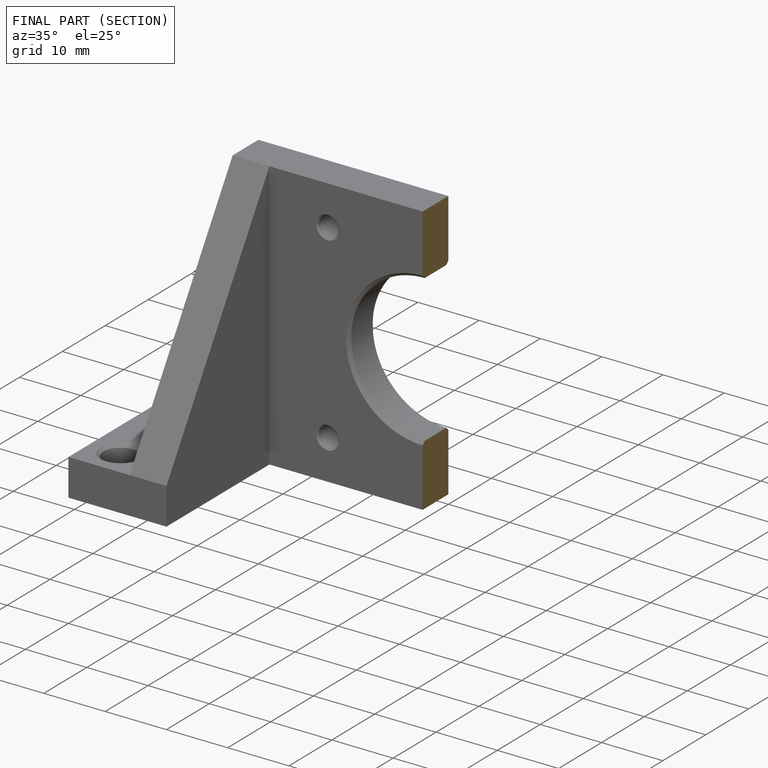
[diagram: finished part — half-section view (interior)]
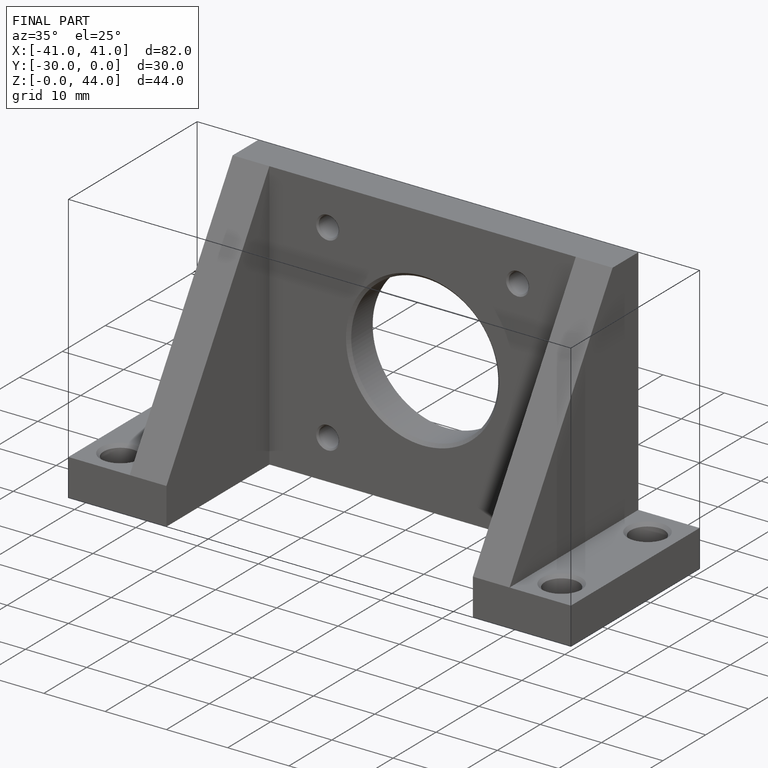
[diagram: finished part — iso view with bounding-box wireframe]
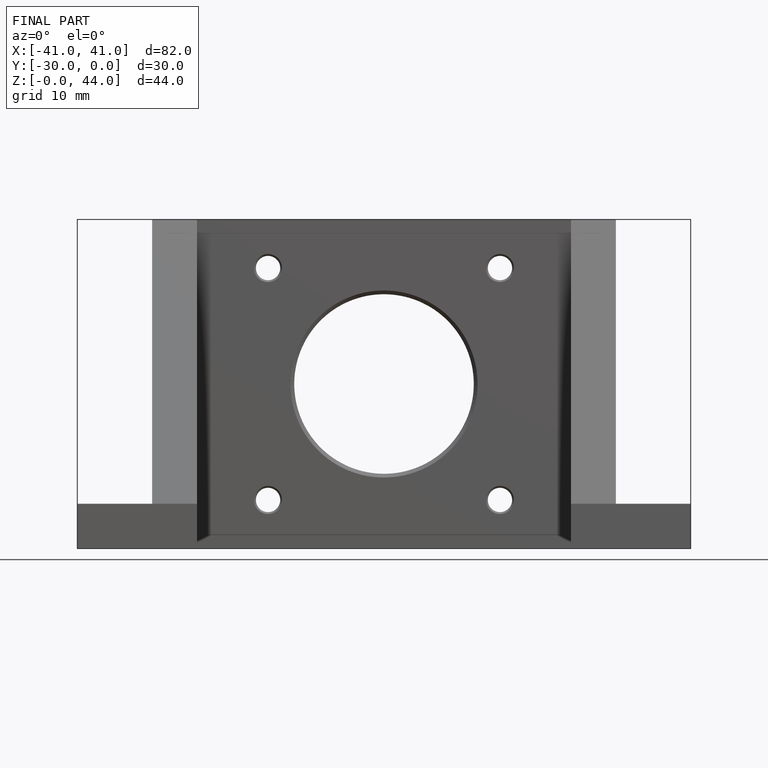
[diagram: finished part — front view with bounding-box wireframe]
